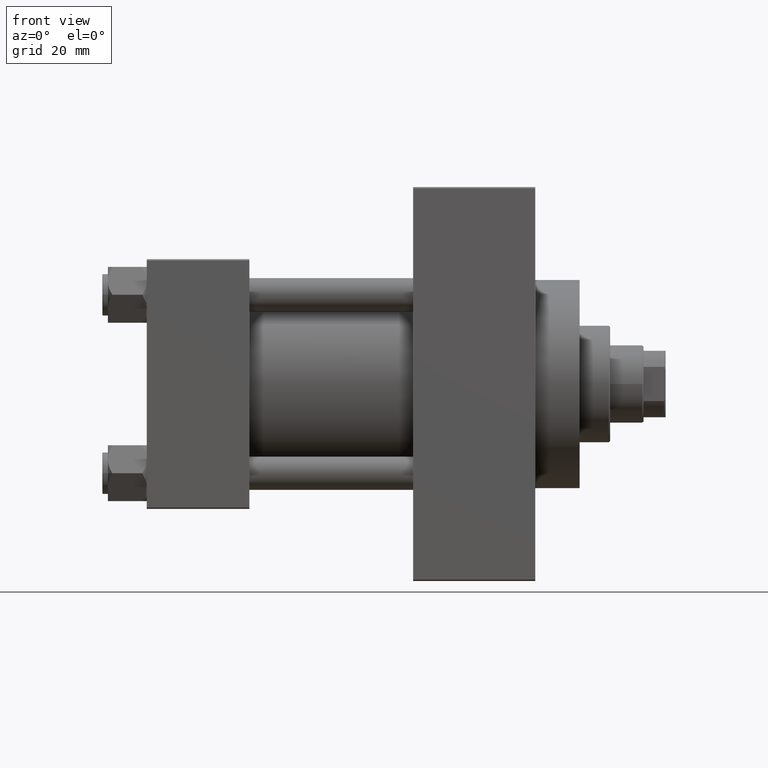
[diagram: clean part render]
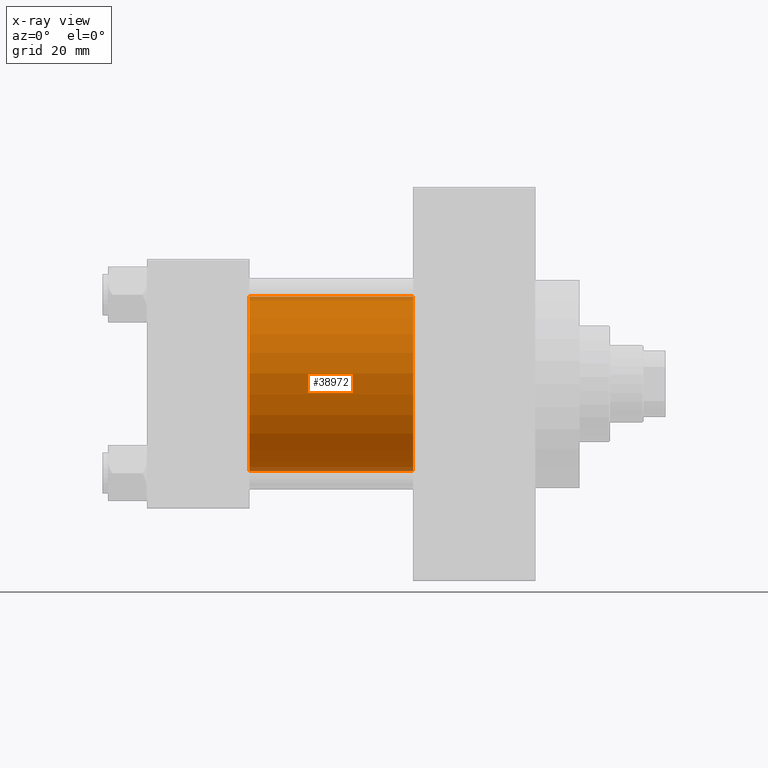
[diagram: x-ray — body ghosted, one internal face saturated and labeled with its STEP entity id]
A machine part, front view, then the same camera in x-ray: the body is ghosted and one INTERNAL B-rep face — a face not visible from any outside direction — is saturated and labeled: STEP entity #38972.
In plain terms, the highlighted cylindrical surface (partial cylindrical patch) has radius 31.5 mm, axis along (-1, -0, -0).
Its self-contained STEP definition (entity closure, byte-faithful):
#110 = VERTEX_POINT ( 'NONE', #31070 ) ;
#1622 = DIRECTION ( 'NONE',  ( 0.000000000000000000, 0.000000000000000000, -1.000000000000000000 ) ) ;
#1791 = EDGE_CURVE ( 'NONE', #24842, #110, #41645, .T. ) ;
#2803 = CARTESIAN_POINT ( 'NONE',  ( 96.00000000000000000, -2.602085213965210642E-15, 31.50000000000000000 ) ) ;
#3031 = ORIENTED_EDGE ( 'NONE', *, *, #3787, .T. ) ;
#3787 = EDGE_CURVE ( 'NONE', #35411, #24842, #36896, .T. ) ;
#4187 = AXIS2_PLACEMENT_3D ( 'NONE', #11088, #6813, #43568 ) ;
#6053 = CARTESIAN_POINT ( 'NONE',  ( 37.00000000000000000, -2.602085213965210642E-15, 31.50000000000000000 ) ) ;
#6605 = LINE ( 'NONE', #2803, #29465 ) ;
#6813 = DIRECTION ( 'NONE',  ( 1.000000000000000000, 0.000000000000000000, 0.000000000000000000 ) ) ;
#9063 = EDGE_CURVE ( 'NONE', #35411, #21389, #6605, .T. ) ;
#11088 = CARTESIAN_POINT ( 'NONE',  ( 37.00000000000000000, -2.602085213965210642E-15, 0.000000000000000000 ) ) ;
#11609 = CARTESIAN_POINT ( 'NONE',  ( 96.00000000000000000, 1.255552203348951850E-15, -31.50000000000000000 ) ) ;
#12421 = CYLINDRICAL_SURFACE ( 'NONE', #32009, 31.50000000000000000 ) ;
#12824 = DIRECTION ( 'NONE',  ( 1.000000000000000000, 0.000000000000000000, 0.000000000000000000 ) ) ;
#19103 = EDGE_LOOP ( 'NONE', ( #3031, #19943, #42405, #20548 ) ) ;
#19126 = DIRECTION ( 'NONE',  ( -1.000000000000000000, -0.000000000000000000, -0.000000000000000000 ) ) ;
#19943 = ORIENTED_EDGE ( 'NONE', *, *, #1791, .T. ) ;
#20175 = DIRECTION ( 'NONE',  ( -1.000000000000000000, -0.000000000000000000, -0.000000000000000000 ) ) ;
#20548 = ORIENTED_EDGE ( 'NONE', *, *, #9063, .F. ) ;
#21389 = VERTEX_POINT ( 'NONE', #6053 ) ;
#22374 = VECTOR ( 'NONE', #20175, 1000.000000000000000 ) ;
#24170 = EDGE_CURVE ( 'NONE', #21389, #110, #35437, .T. ) ;
#24842 = VERTEX_POINT ( 'NONE', #11609 ) ;
#26291 = FACE_OUTER_BOUND ( 'NONE', #19103, .T. ) ;
#28219 = CARTESIAN_POINT ( 'NONE',  ( 96.00000000000000000, 1.255552203348951850E-15, -31.50000000000000000 ) ) ;
#29465 = VECTOR ( 'NONE', #42179, 1000.000000000000000 ) ;
#31070 = CARTESIAN_POINT ( 'NONE',  ( 37.00000000000000000, 1.255552203348951850E-15, -31.50000000000000000 ) ) ;
#32009 = AXIS2_PLACEMENT_3D ( 'NONE', #36768, #19126, #37716 ) ;
#33640 = CARTESIAN_POINT ( 'NONE',  ( 96.00000000000000000, -2.602085213965210642E-15, 31.50000000000000000 ) ) ;
#35411 = VERTEX_POINT ( 'NONE', #33640 ) ;
#35437 = CIRCLE ( 'NONE', #4187, 31.50000000000000000 ) ;
#36768 = CARTESIAN_POINT ( 'NONE',  ( 96.00000000000000000, -2.602085213965210642E-15, 0.000000000000000000 ) ) ;
#36896 = CIRCLE ( 'NONE', #39976, 31.50000000000000000 ) ;
#37716 = DIRECTION ( 'NONE',  ( 0.000000000000000000, 0.000000000000000000, 1.000000000000000000 ) ) ;
#38972 = ADVANCED_FACE ( 'NONE', ( #26291 ), #12421, .F. ) ;
#39976 = AXIS2_PLACEMENT_3D ( 'NONE', #45536, #12824, #1622 ) ;
#41645 = LINE ( 'NONE', #28219, #22374 ) ;
#42179 = DIRECTION ( 'NONE',  ( -1.000000000000000000, -0.000000000000000000, -0.000000000000000000 ) ) ;
#42405 = ORIENTED_EDGE ( 'NONE', *, *, #24170, .F. ) ;
#43568 = DIRECTION ( 'NONE',  ( 0.000000000000000000, 0.000000000000000000, -1.000000000000000000 ) ) ;
#45536 = CARTESIAN_POINT ( 'NONE',  ( 96.00000000000000000, -2.602085213965210642E-15, 0.000000000000000000 ) ) ;